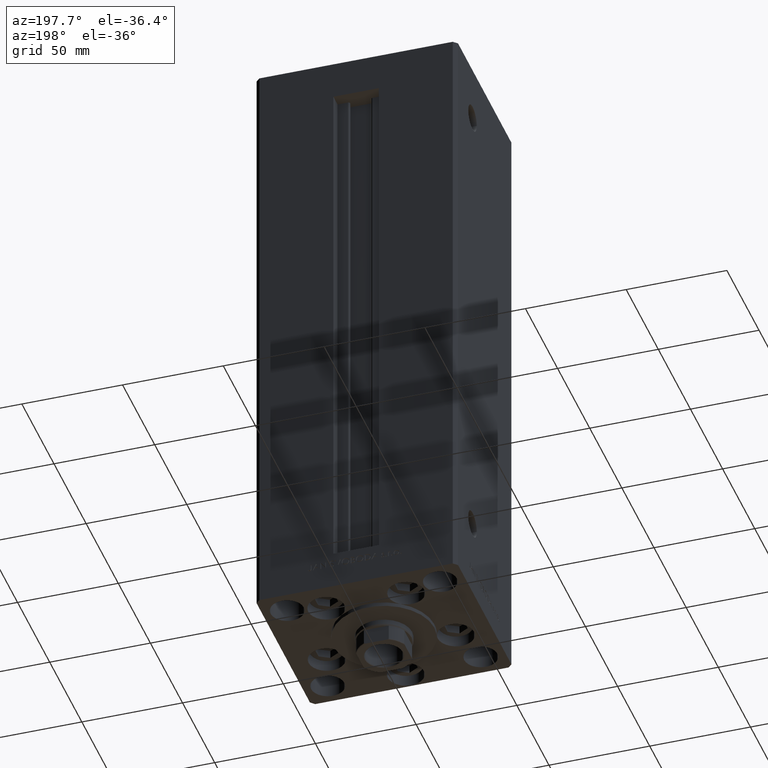
[diagram: clean part render]
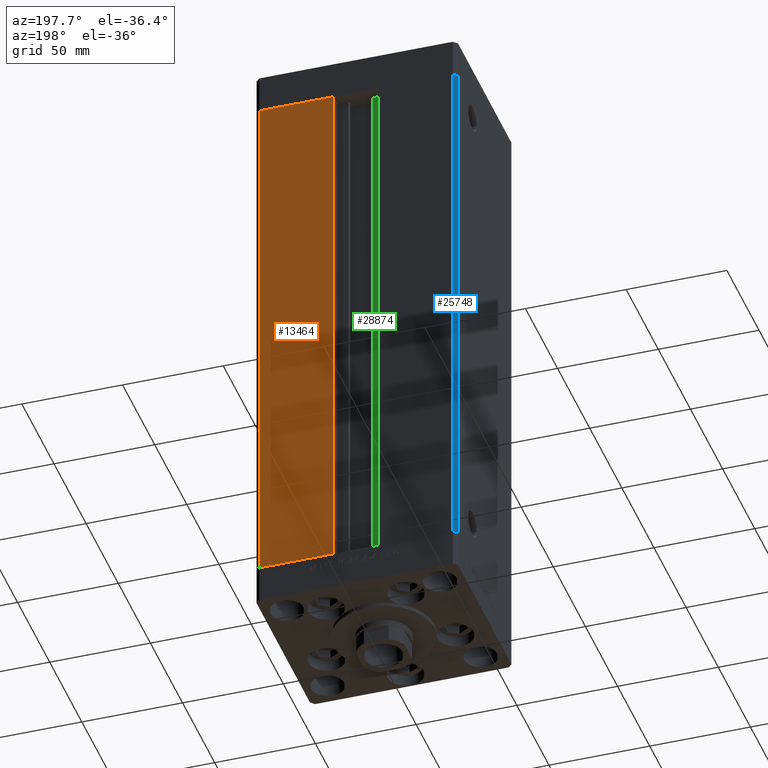
[diagram: same view with three faces highlighted in distinct colors, each labeled with its STEP entity id]
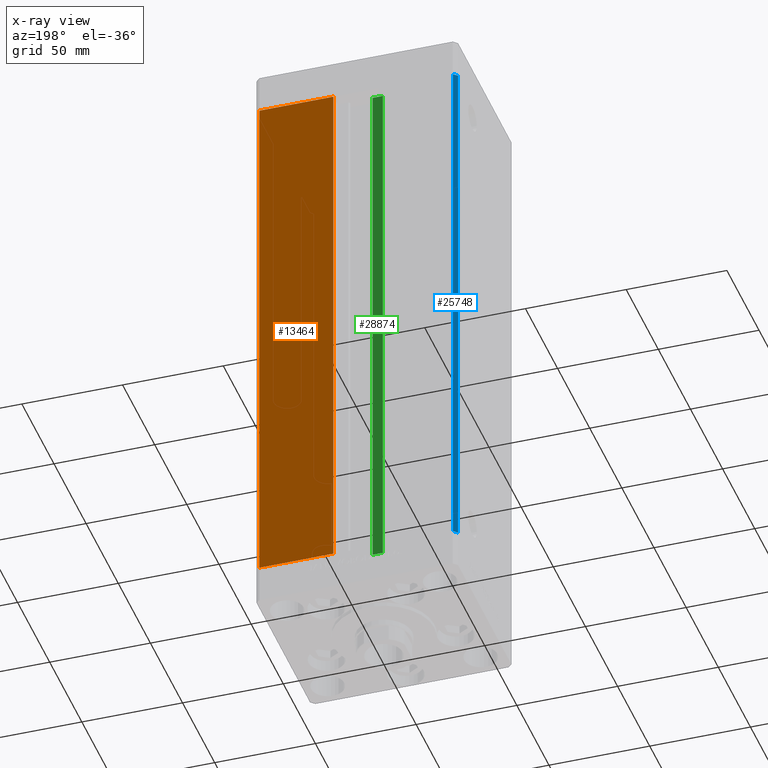
[diagram: x-ray of the same camera — body ghosted, the three highlighted faces saturated]
A machine part, auxiliary view with three faces highlighted in distinct colors.
The next image is the same camera in x-ray (body ghosted, the three faces saturated) — at least one of them is partly hidden behind the body in this view.
Their STEP definitions:

[orange] entity #13464 — the highlighted planar face has unit normal (0, -1, 0).
#1738 = ORIENTED_EDGE ( 'NONE', *, *, #32763, .T. ) ;
#2386 = CARTESIAN_POINT ( 'NONE',  ( 11.24999999999999822, 43.50000000000000000, 0.000000000000000000 ) ) ;
#2557 = DIRECTION ( 'NONE',  ( -0.000000000000000000, -0.000000000000000000, -1.000000000000000000 ) ) ;
#4843 = DIRECTION ( 'NONE',  ( 0.000000000000000000, -0.000000000000000000, -1.000000000000000000 ) ) ;
#13464 = ADVANCED_FACE ( 'NONE', ( #24080 ), #39539, .F. ) ;
#14437 = EDGE_LOOP ( 'NONE', ( #30078, #25611, #1738, #30204 ) ) ;
#16299 = CARTESIAN_POINT ( 'NONE',  ( 48.00000000000000711, 43.50000000000000000, 268.5000000000000000 ) ) ;
#16991 = CARTESIAN_POINT ( 'NONE',  ( 11.24999999999999112, 43.50000000000000000, 268.5000000000000000 ) ) ;
#17109 = LINE ( 'NONE', #48528, #29693 ) ;
#19086 = CARTESIAN_POINT ( 'NONE',  ( -11.24999999999999822, 43.50000000000000000, 0.000000000000000000 ) ) ;
#21593 = VERTEX_POINT ( 'NONE', #16991 ) ;
#22725 = VERTEX_POINT ( 'NONE', #2386 ) ;
#24080 = FACE_OUTER_BOUND ( 'NONE', #14437, .T. ) ;
#24458 = DIRECTION ( 'NONE',  ( -0.000000000000000000, -0.000000000000000000, 1.000000000000000000 ) ) ;
#25611 = ORIENTED_EDGE ( 'NONE', *, *, #43440, .T. ) ;
#27573 = VECTOR ( 'NONE', #24458, 1000.000000000000000 ) ;
#29693 = VECTOR ( 'NONE', #48034, 1000.000000000000000 ) ;
#30078 = ORIENTED_EDGE ( 'NONE', *, *, #39393, .T. ) ;
#30204 = ORIENTED_EDGE ( 'NONE', *, *, #34201, .T. ) ;
#30723 = DIRECTION ( 'NONE',  ( -1.000000000000000000, 0.000000000000000000, 0.000000000000000000 ) ) ;
#31685 = CARTESIAN_POINT ( 'NONE',  ( -11.24999999999999822, 43.50000000000000000, 268.5000000000000000 ) ) ;
#32763 = EDGE_CURVE ( 'NONE', #21593, #34641, #17109, .T. ) ;
#34201 = EDGE_CURVE ( 'NONE', #34641, #43688, #36998, .T. ) ;
#34298 = CARTESIAN_POINT ( 'NONE',  ( 48.00000000000000711, 43.50000000000000000, 0.000000000000000000 ) ) ;
#34641 = VERTEX_POINT ( 'NONE', #16299 ) ;
#36998 = LINE ( 'NONE', #40057, #49201 ) ;
#39393 = EDGE_CURVE ( 'NONE', #43688, #22725, #49259, .T. ) ;
#39539 = PLANE ( 'NONE',  #46207 ) ;
#40057 = CARTESIAN_POINT ( 'NONE',  ( 48.00000000000000711, 43.50000000000000000, 268.5000000000000000 ) ) ;
#40175 = CARTESIAN_POINT ( 'NONE',  ( 11.24999999999999822, 43.50000000000000000, 0.000000000000000000 ) ) ;
#43440 = EDGE_CURVE ( 'NONE', #22725, #21593, #47527, .T. ) ;
#43688 = VERTEX_POINT ( 'NONE', #34298 ) ;
#46207 = AXIS2_PLACEMENT_3D ( 'NONE', #31685, #47919, #4843 ) ;
#47527 = LINE ( 'NONE', #40175, #27573 ) ;
#47919 = DIRECTION ( 'NONE',  ( 0.000000000000000000, -1.000000000000000000, 0.000000000000000000 ) ) ;
#48034 = DIRECTION ( 'NONE',  ( 1.000000000000000000, 0.000000000000000000, 0.000000000000000000 ) ) ;
#48528 = CARTESIAN_POINT ( 'NONE',  ( -11.24999999999999822, 43.50000000000000000, 268.5000000000000000 ) ) ;
#49201 = VECTOR ( 'NONE', #2557, 1000.000000000000000 ) ;
#49259 = LINE ( 'NONE', #19086, #49308 ) ;
#49308 = VECTOR ( 'NONE', #30723, 1000.000000000000000 ) ;

[blue] entity #25748 — the highlighted planar face has unit normal (0.7071, -0.7071, 0).
#1098 = CARTESIAN_POINT ( 'NONE',  ( -48.00000000000000711, 43.50000000000000000, 268.5000000000000000 ) ) ;
#1668 = VECTOR ( 'NONE', #35017, 1000.000000000000000 ) ;
#2647 = DIRECTION ( 'NONE',  ( -0.000000000000000000, -0.000000000000000000, -1.000000000000000000 ) ) ;
#2740 = VERTEX_POINT ( 'NONE', #20244 ) ;
#6069 = ORIENTED_EDGE ( 'NONE', *, *, #41488, .T. ) ;
#6529 = VERTEX_POINT ( 'NONE', #26563 ) ;
#7418 = CARTESIAN_POINT ( 'NONE',  ( -50.00000000000001421, 41.49999999999999289, 268.5000000000000000 ) ) ;
#9366 = EDGE_CURVE ( 'NONE', #6529, #2740, #16096, .T. ) ;
#11905 = EDGE_LOOP ( 'NONE', ( #23488, #21748, #35912, #6069 ) ) ;
#13568 = DIRECTION ( 'NONE',  ( -0.7071067811865487940, -0.7071067811865463515, 0.000000000000000000 ) ) ;
#14872 = DIRECTION ( 'NONE',  ( -0.7071067811865487940, -0.7071067811865463515, 0.000000000000000000 ) ) ;
#16096 = LINE ( 'NONE', #32562, #48999 ) ;
#16359 = EDGE_CURVE ( 'NONE', #31466, #23719, #45550, .T. ) ;
#18430 = FACE_OUTER_BOUND ( 'NONE', #11905, .T. ) ;
#18671 = DIRECTION ( 'NONE',  ( 0.7071067811865463515, -0.7071067811865487940, 0.000000000000000000 ) ) ;
#20244 = CARTESIAN_POINT ( 'NONE',  ( -50.00000000000001421, 41.49999999999999289, 0.000000000000000000 ) ) ;
#21748 = ORIENTED_EDGE ( 'NONE', *, *, #48250, .F. ) ;
#23488 = ORIENTED_EDGE ( 'NONE', *, *, #9366, .T. ) ;
#23719 = VERTEX_POINT ( 'NONE', #29509 ) ;
#25748 = ADVANCED_FACE ( 'NONE', ( #18430 ), #48865, .F. ) ;
#26164 = LINE ( 'NONE', #7418, #43818 ) ;
#26273 = CARTESIAN_POINT ( 'NONE',  ( -48.00000000000000711, 43.50000000000000000, 268.5000000000000000 ) ) ;
#26563 = CARTESIAN_POINT ( 'NONE',  ( -48.00000000000000711, 43.50000000000000000, 0.000000000000000000 ) ) ;
#29509 = CARTESIAN_POINT ( 'NONE',  ( -50.00000000000001421, 41.49999999999999289, 268.5000000000000000 ) ) ;
#30328 = CARTESIAN_POINT ( 'NONE',  ( -48.00000000000000711, 43.50000000000000000, 268.5000000000000000 ) ) ;
#31466 = VERTEX_POINT ( 'NONE', #36083 ) ;
#32562 = CARTESIAN_POINT ( 'NONE',  ( -48.00000000000000711, 43.50000000000000000, 0.000000000000000000 ) ) ;
#35017 = DIRECTION ( 'NONE',  ( -0.000000000000000000, -0.000000000000000000, -1.000000000000000000 ) ) ;
#35775 = VECTOR ( 'NONE', #14872, 1000.000000000000000 ) ;
#35776 = LINE ( 'NONE', #1098, #1668 ) ;
#35912 = ORIENTED_EDGE ( 'NONE', *, *, #16359, .F. ) ;
#36083 = CARTESIAN_POINT ( 'NONE',  ( -48.00000000000000711, 43.50000000000000000, 268.5000000000000000 ) ) ;
#37580 = AXIS2_PLACEMENT_3D ( 'NONE', #30328, #18671, #37924 ) ;
#37924 = DIRECTION ( 'NONE',  ( 0.7071067811865487940, 0.7071067811865463515, 0.000000000000000000 ) ) ;
#41488 = EDGE_CURVE ( 'NONE', #31466, #6529, #35776, .T. ) ;
#43818 = VECTOR ( 'NONE', #2647, 1000.000000000000000 ) ;
#45550 = LINE ( 'NONE', #26273, #35775 ) ;
#48250 = EDGE_CURVE ( 'NONE', #23719, #2740, #26164, .T. ) ;
#48865 = PLANE ( 'NONE',  #37580 ) ;
#48999 = VECTOR ( 'NONE', #13568, 1000.000000000000000 ) ;

[green] entity #28874 — the highlighted planar face has unit normal (0, -1, 0).
#87 = VERTEX_POINT ( 'NONE', #33734 ) ;
#216 = VECTOR ( 'NONE', #17585, 1000.000000000000000 ) ;
#417 = EDGE_CURVE ( 'NONE', #36018, #17343, #41528, .T. ) ;
#2182 = EDGE_CURVE ( 'NONE', #35944, #87, #29722, .T. ) ;
#4733 = FACE_OUTER_BOUND ( 'NONE', #47760, .T. ) ;
#5259 = DIRECTION ( 'NONE',  ( 0.000000000000000000, -1.000000000000000000, -0.000000000000000000 ) ) ;
#5347 = AXIS2_PLACEMENT_3D ( 'NONE', #8278, #5259, #46801 ) ;
#5929 = DIRECTION ( 'NONE',  ( -0.000000000000000000, -0.000000000000000000, 1.000000000000000000 ) ) ;
#7011 = EDGE_CURVE ( 'NONE', #36018, #87, #28521, .T. ) ;
#8278 = CARTESIAN_POINT ( 'NONE',  ( -6.183333333333997928, 36.99999999999999289, 0.000000000000000000 ) ) ;
#9718 = LINE ( 'NONE', #33017, #21399 ) ;
#9983 = CARTESIAN_POINT ( 'NONE',  ( 0.000000000000000000, 36.99999999999999289, 268.5000000000000000 ) ) ;
#13940 = CARTESIAN_POINT ( 'NONE',  ( -6.183333333333997928, 36.99999999999999289, 0.000000000000000000 ) ) ;
#17343 = VERTEX_POINT ( 'NONE', #18617 ) ;
#17585 = DIRECTION ( 'NONE',  ( -1.000000000000000000, 0.000000000000000000, 0.000000000000000000 ) ) ;
#18617 = CARTESIAN_POINT ( 'NONE',  ( -6.183333333333997928, 36.99999999999999289, 0.000000000000000000 ) ) ;
#19534 = VECTOR ( 'NONE', #49149, 1000.000000000000000 ) ;
#19761 = CARTESIAN_POINT ( 'NONE',  ( -6.183333333333997928, 36.99999999999999289, 268.5000000000000000 ) ) ;
#21399 = VECTOR ( 'NONE', #5929, 1000.000000000000000 ) ;
#22782 = EDGE_CURVE ( 'NONE', #17343, #35944, #9718, .T. ) ;
#23014 = ORIENTED_EDGE ( 'NONE', *, *, #7011, .T. ) ;
#23731 = PLANE ( 'NONE',  #5347 ) ;
#26218 = VECTOR ( 'NONE', #47292, 1000.000000000000000 ) ;
#26469 = ORIENTED_EDGE ( 'NONE', *, *, #2182, .F. ) ;
#28521 = LINE ( 'NONE', #44008, #26218 ) ;
#28874 = ADVANCED_FACE ( 'NONE', ( #4733 ), #23731, .F. ) ;
#29722 = LINE ( 'NONE', #9983, #216 ) ;
#31027 = ORIENTED_EDGE ( 'NONE', *, *, #417, .F. ) ;
#33017 = CARTESIAN_POINT ( 'NONE',  ( -6.183333333333997928, 36.99999999999999289, 0.000000000000000000 ) ) ;
#33734 = CARTESIAN_POINT ( 'NONE',  ( -11.24999999999999822, 36.99999999999999289, 268.5000000000000000 ) ) ;
#35430 = ORIENTED_EDGE ( 'NONE', *, *, #22782, .F. ) ;
#35944 = VERTEX_POINT ( 'NONE', #19761 ) ;
#36018 = VERTEX_POINT ( 'NONE', #40034 ) ;
#40034 = CARTESIAN_POINT ( 'NONE',  ( -11.24999999999999822, 36.99999999999999289, 0.000000000000000000 ) ) ;
#41528 = LINE ( 'NONE', #13940, #19534 ) ;
#44008 = CARTESIAN_POINT ( 'NONE',  ( -11.24999999999999822, 36.99999999999999289, 0.000000000000000000 ) ) ;
#46801 = DIRECTION ( 'NONE',  ( 0.000000000000000000, 0.000000000000000000, -1.000000000000000000 ) ) ;
#47292 = DIRECTION ( 'NONE',  ( -0.000000000000000000, -0.000000000000000000, 1.000000000000000000 ) ) ;
#47760 = EDGE_LOOP ( 'NONE', ( #35430, #31027, #23014, #26469 ) ) ;
#49149 = DIRECTION ( 'NONE',  ( 1.000000000000000000, -0.000000000000000000, -0.000000000000000000 ) ) ;